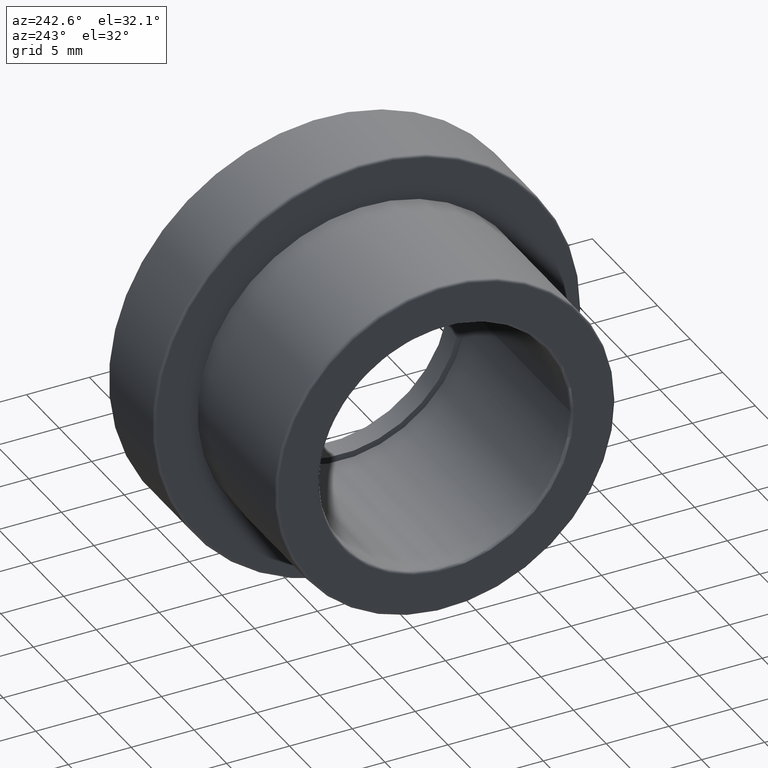
[diagram: clean part render]
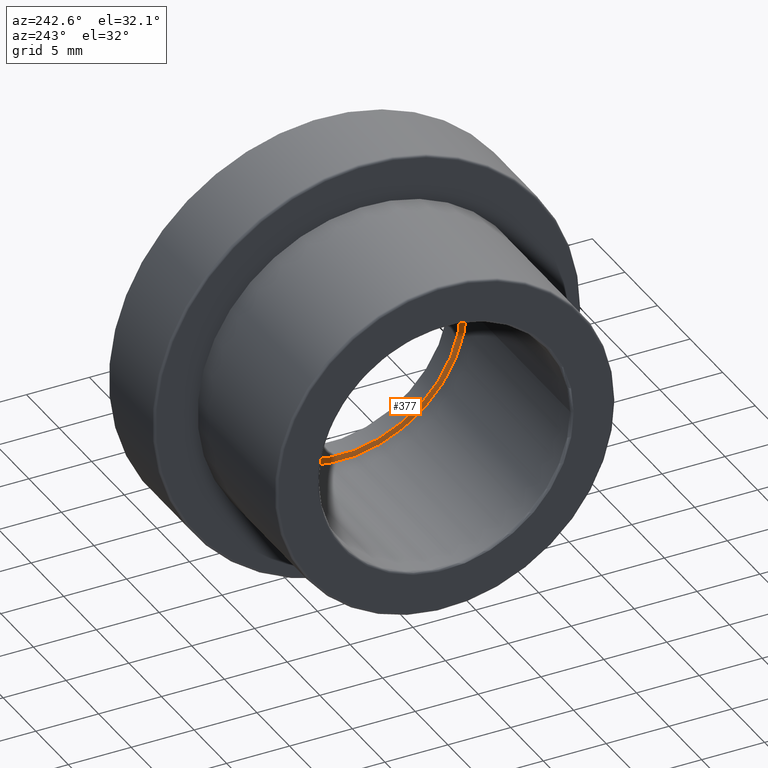
[diagram: same view with one face highlighted and labeled with its STEP entity id]
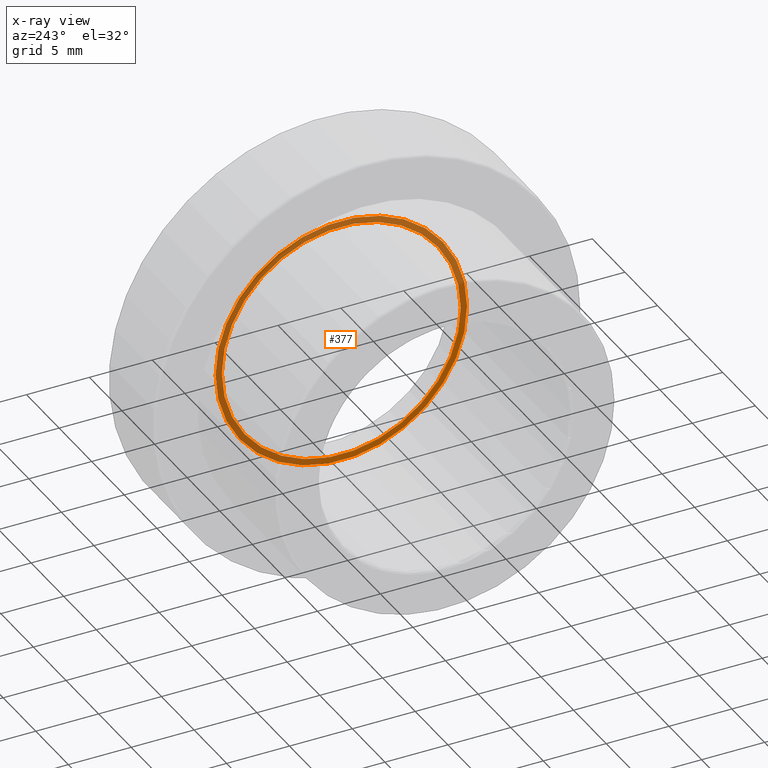
[diagram: x-ray of the same camera — body ghosted, the highlighted face saturated]
A machine part, auxiliary view. The second image highlights one B-rep face of the part: STEP entity #377.
The next image is the same camera in x-ray: the body ghosted, the highlighted face saturated — about 71% of this face is hidden behind the body in this view.
In plain terms, the highlighted planar face has unit normal (-1, 0, 0).
Its self-contained STEP definition (entity closure, byte-faithful):
#32=PLANE('',#445);
#65=FACE_BOUND('',#164,.T.);
#98=FACE_OUTER_BOUND('',#163,.T.);
#163=EDGE_LOOP('',(#328));
#164=EDGE_LOOP('',(#329));
#168=CIRCLE('',#386,9.5);
#186=CIRCLE('',#420,10.);
#201=VERTEX_POINT('',#590);
#219=VERTEX_POINT('',#642);
#234=EDGE_CURVE('',#201,#201,#168,.T.);
#252=EDGE_CURVE('',#219,#219,#186,.T.);
#328=ORIENTED_EDGE('',*,*,#252,.T.);
#329=ORIENTED_EDGE('',*,*,#234,.F.);
#377=ADVANCED_FACE('',(#98,#65),#32,.T.);
#386=AXIS2_PLACEMENT_3D('',#591,#460,#461);
#420=AXIS2_PLACEMENT_3D('',#643,#528,#529);
#445=AXIS2_PLACEMENT_3D('',#679,#578,#579);
#460=DIRECTION('center_axis',(-1.,0.,0.));
#461=DIRECTION('ref_axis',(0.,0.,1.));
#528=DIRECTION('center_axis',(-1.,0.,0.));
#529=DIRECTION('ref_axis',(0.,0.,1.));
#578=DIRECTION('center_axis',(-1.,0.,0.));
#579=DIRECTION('ref_axis',(0.,0.,1.));
#590=CARTESIAN_POINT('',(16.,-9.5,0.));
#591=CARTESIAN_POINT('Origin',(16.,0.,0.));
#642=CARTESIAN_POINT('',(16.,-10.,0.));
#643=CARTESIAN_POINT('Origin',(16.,0.,0.));
#679=CARTESIAN_POINT('Origin',(16.,-9.5,0.));